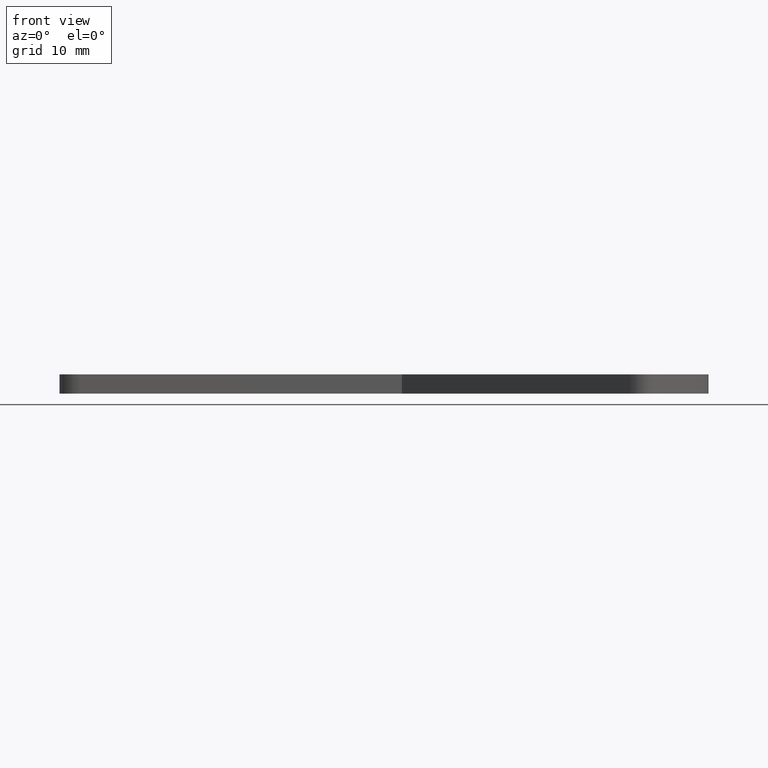
[diagram: clean part render]
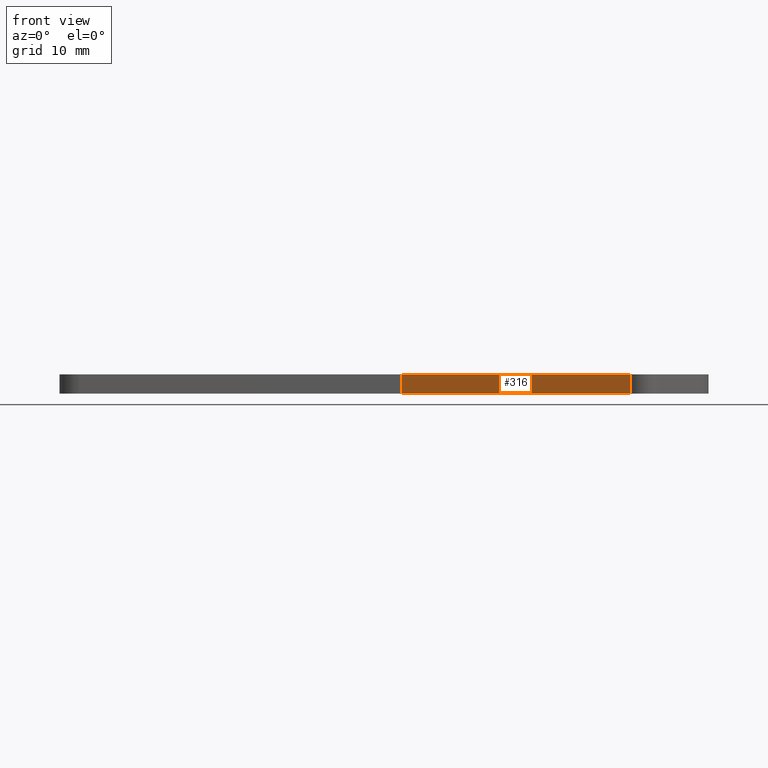
[diagram: same view with one face highlighted and labeled with its STEP entity id]
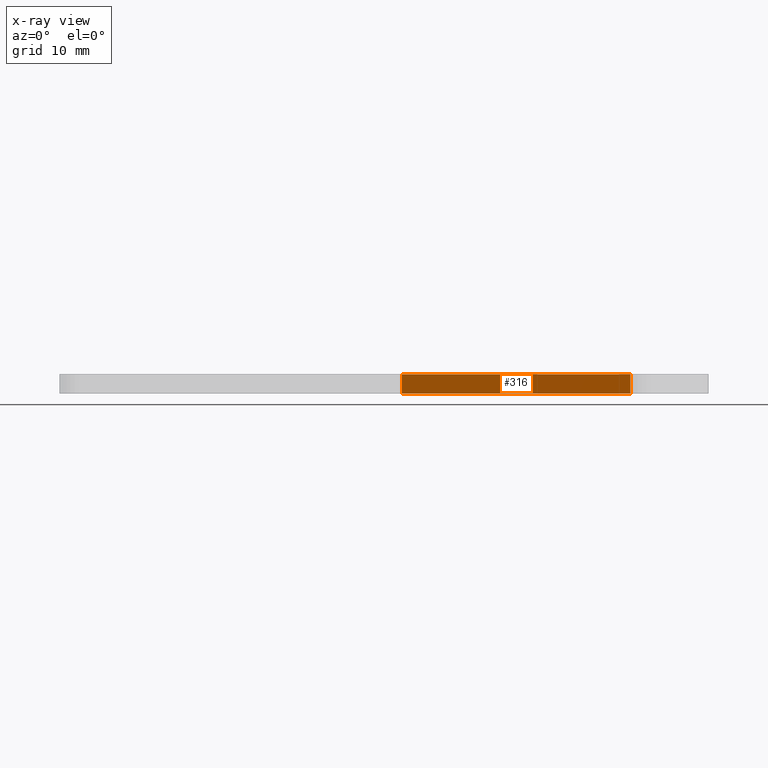
[diagram: x-ray of the same camera — body ghosted, the highlighted face saturated]
A machine part, front view. The second image highlights one B-rep face of the part: STEP entity #316.
The next image is the same camera in x-ray: the body ghosted, the highlighted face saturated — about 0% of this face is hidden behind the body in this view.
In plain terms, the highlighted planar face has unit normal (-0.7071, -0.7071, 0).
Its self-contained STEP definition (entity closure, byte-faithful):
#17=PLANE('',#349);
#32=LINE('',#509,#55);
#33=LINE('',#512,#56);
#34=LINE('',#514,#57);
#35=LINE('',#515,#58);
#55=VECTOR('',#418,3.);
#56=VECTOR('',#421,50.3725830020307);
#57=VECTOR('',#422,50.3725830020307);
#58=VECTOR('',#423,3.);
#90=FACE_OUTER_BOUND('',#111,.T.);
#111=EDGE_LOOP('',(#244,#245,#246,#247));
#163=VERTEX_POINT('',#505);
#164=VERTEX_POINT('',#507);
#165=VERTEX_POINT('',#511);
#166=VERTEX_POINT('',#513);
#198=EDGE_CURVE('',#163,#164,#32,.T.);
#199=EDGE_CURVE('',#163,#165,#33,.T.);
#200=EDGE_CURVE('',#166,#164,#34,.T.);
#201=EDGE_CURVE('',#165,#166,#35,.T.);
#244=ORIENTED_EDGE('',*,*,#199,.F.);
#245=ORIENTED_EDGE('',*,*,#198,.T.);
#246=ORIENTED_EDGE('',*,*,#200,.F.);
#247=ORIENTED_EDGE('',*,*,#201,.F.);
#316=ADVANCED_FACE('',(#90),#17,.T.);
#349=AXIS2_PLACEMENT_3D('',#510,#419,#420);
#418=DIRECTION('',(0.,0.,1.));
#419=DIRECTION('center_axis',(-0.707106781186546,-0.707106781186549,0.));
#420=DIRECTION('ref_axis',(0.707106781186549,-0.707106781186546,0.));
#421=DIRECTION('',(-0.707106781186549,0.707106781186546,0.));
#422=DIRECTION('',(0.707106781186549,-0.707106781186546,0.));
#423=DIRECTION('',(0.,0.,1.));
#505=CARTESIAN_POINT('',(83.8633626273283,3.11963293664257,0.));
#507=CARTESIAN_POINT('',(83.8633626273283,3.11963293664258,3.));
#509=CARTESIAN_POINT('',(83.8633626273283,3.11963293664257,0.));
#510=CARTESIAN_POINT('Origin',(48.2445676007101,38.7384279632606,0.));
#511=CARTESIAN_POINT('',(48.2445676007101,38.7384279632606,0.));
#512=CARTESIAN_POINT('',(83.8633626273283,3.11963293664257,0.));
#513=CARTESIAN_POINT('',(48.2445676007101,38.7384279632606,3.));
#514=CARTESIAN_POINT('',(83.8633626273283,3.11963293664257,3.));
#515=CARTESIAN_POINT('',(48.2445676007101,38.7384279632606,0.));